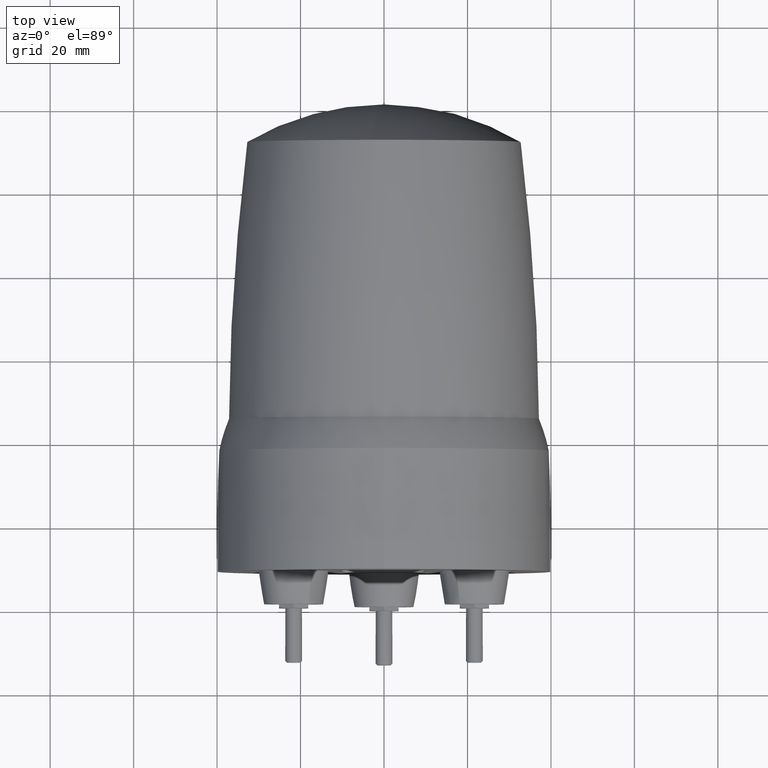
[diagram: clean part render]
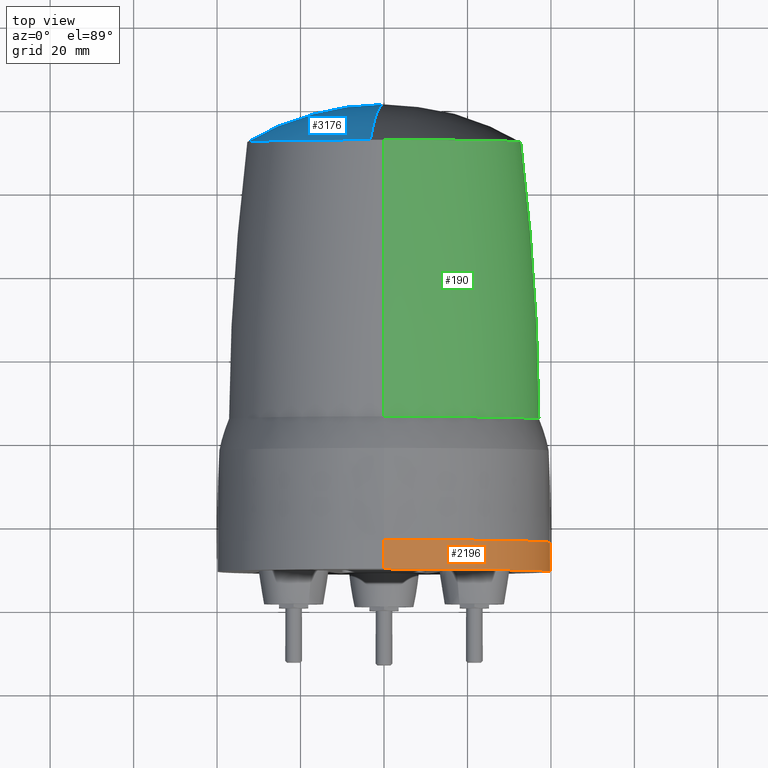
[diagram: same view with three faces highlighted in distinct colors, each labeled with its STEP entity id]
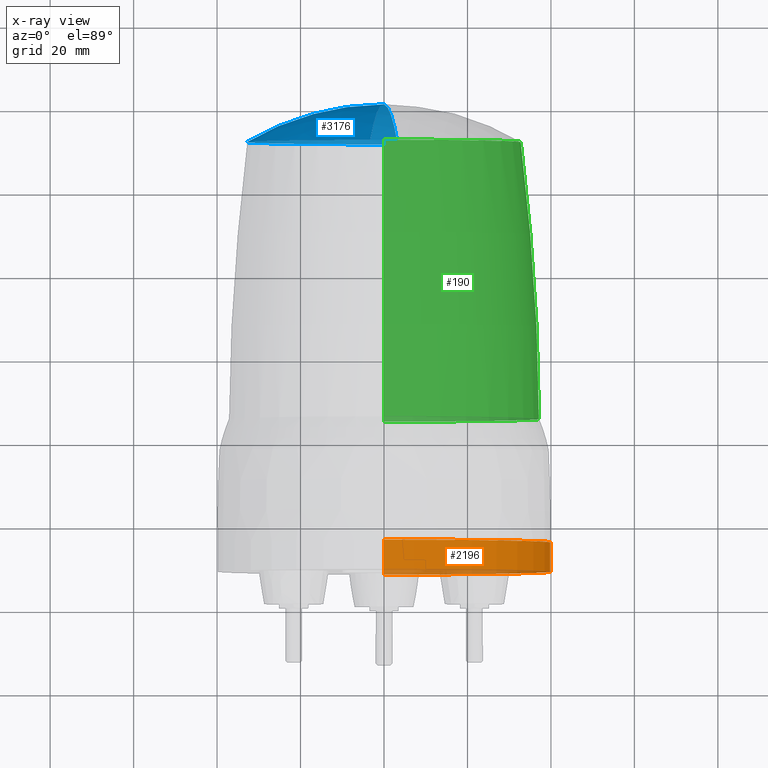
[diagram: x-ray of the same camera — body ghosted, the three highlighted faces saturated]
A machine part, top view with three faces highlighted in distinct colors.
The next image is the same camera in x-ray (body ghosted, the three faces saturated) — at least one of them is partly hidden behind the body in this view.
Their STEP definitions:

[orange] entity #2196 — the highlighted cylindrical surface (partial cylindrical patch) has radius 40 mm, axis along (0, -1, 0).
#171 = VECTOR ( 'NONE', #2950, 1000.000000000000000 ) ;
#316 = CIRCLE ( 'NONE', #4392, 40.00000000000000000 ) ;
#612 = DIRECTION ( 'NONE',  ( 0.000000000000000000, 0.000000000000000000, -1.000000000000000000 ) ) ;
#911 = CARTESIAN_POINT ( 'NONE',  ( 0.000000000000000000, 16.00000000000000000, -40.00000000000000000 ) ) ;
#1172 = EDGE_CURVE ( 'NONE', #2949, #2592, #2368, .T. ) ;
#1287 = VERTEX_POINT ( 'NONE', #2703 ) ;
#1389 = ORIENTED_EDGE ( 'NONE', *, *, #1997, .F. ) ;
#1455 = CARTESIAN_POINT ( 'NONE',  ( 4.814824860968091034E-30, 16.00000000000000000, -40.00000000000000000 ) ) ;
#1819 = VECTOR ( 'NONE', #3354, 1000.000000000000000 ) ;
#1967 = CARTESIAN_POINT ( 'NONE',  ( 4.898587196589413026E-15, 16.00000000000000000, 40.00000000000000000 ) ) ;
#1997 = EDGE_CURVE ( 'NONE', #2592, #3577, #316, .T. ) ;
#2073 = DIRECTION ( 'NONE',  ( -3.469446951953615175E-16, -1.000000000000000000, 0.000000000000000000 ) ) ;
#2149 = FACE_OUTER_BOUND ( 'NONE', #2294, .T. ) ;
#2169 = CARTESIAN_POINT ( 'NONE',  ( 0.000000000000000000, 16.00000000000000000, 0.000000000000000000 ) ) ;
#2196 = ADVANCED_FACE ( 'NONE', ( #2149 ), #4285, .T. ) ;
#2294 = EDGE_LOOP ( 'NONE', ( #2842, #3083, #1389, #3178 ) ) ;
#2300 = CARTESIAN_POINT ( 'NONE',  ( 4.898587196589413026E-15, 9.000000000000000000, 40.00000000000000000 ) ) ;
#2332 = CIRCLE ( 'NONE', #3887, 40.00000000000000000 ) ;
#2353 = CARTESIAN_POINT ( 'NONE',  ( 0.000000000000000000, 16.00000000000000000, 0.000000000000000000 ) ) ;
#2368 = LINE ( 'NONE', #911, #171 ) ;
#2592 = VERTEX_POINT ( 'NONE', #3630 ) ;
#2612 = LINE ( 'NONE', #1967, #1819 ) ;
#2703 = CARTESIAN_POINT ( 'NONE',  ( 4.898587196589417759E-15, 16.00000000000000000, 40.00000000000000000 ) ) ;
#2727 = EDGE_CURVE ( 'NONE', #2949, #1287, #2332, .T. ) ;
#2799 = DIRECTION ( 'NONE',  ( 0.000000000000000000, -1.000000000000000000, 0.000000000000000000 ) ) ;
#2842 = ORIENTED_EDGE ( 'NONE', *, *, #2727, .T. ) ;
#2901 = DIRECTION ( 'NONE',  ( 0.000000000000000000, 0.000000000000000000, -1.000000000000000000 ) ) ;
#2949 = VERTEX_POINT ( 'NONE', #1455 ) ;
#2950 = DIRECTION ( 'NONE',  ( 0.000000000000000000, -1.000000000000000000, 0.000000000000000000 ) ) ;
#3083 = ORIENTED_EDGE ( 'NONE', *, *, #3508, .T. ) ;
#3178 = ORIENTED_EDGE ( 'NONE', *, *, #1172, .F. ) ;
#3291 = AXIS2_PLACEMENT_3D ( 'NONE', #2169, #3592, #2901 ) ;
#3311 = CARTESIAN_POINT ( 'NONE',  ( 0.000000000000000000, 9.000000000000000000, 0.000000000000000000 ) ) ;
#3354 = DIRECTION ( 'NONE',  ( 0.000000000000000000, -1.000000000000000000, 0.000000000000000000 ) ) ;
#3491 = DIRECTION ( 'NONE',  ( 1.000000000000000000, -3.469446951953614189E-16, 0.000000000000000000 ) ) ;
#3508 = EDGE_CURVE ( 'NONE', #1287, #3577, #2612, .T. ) ;
#3577 = VERTEX_POINT ( 'NONE', #2300 ) ;
#3592 = DIRECTION ( 'NONE',  ( 0.000000000000000000, -1.000000000000000000, 0.000000000000000000 ) ) ;
#3630 = CARTESIAN_POINT ( 'NONE',  ( 0.000000000000000000, 9.000000000000000000, -40.00000000000000000 ) ) ;
#3887 = AXIS2_PLACEMENT_3D ( 'NONE', #2353, #2073, #3491 ) ;
#4285 = CYLINDRICAL_SURFACE ( 'NONE', #3291, 40.00000000000000000 ) ;
#4392 = AXIS2_PLACEMENT_3D ( 'NONE', #3311, #2799, #612 ) ;

[blue] entity #3176 — the highlighted spherical surface has radius 64 mm.
#42 = AXIS2_PLACEMENT_3D ( 'NONE', #614, #2441, #958 ) ;
#51 = CARTESIAN_POINT ( 'NONE',  ( 3.911683560049779334E-17, 111.9574960022395942, -32.79746382458340292 ) ) ;
#229 = VERTEX_POINT ( 'NONE', #819 ) ;
#289 = CARTESIAN_POINT ( 'NONE',  ( -4.111966618341213830E-09, 56.99999999659785743, -2.616512756758935325E-10 ) ) ;
#331 = VERTEX_POINT ( 'NONE', #3464 ) ;
#426 = EDGE_CURVE ( 'NONE', #3232, #331, #3172, .T. ) ;
#611 = DIRECTION ( 'NONE',  ( 0.9950041652811341120, -4.231360047240093586E-16, 0.09983341661584822779 ) ) ;
#614 = CARTESIAN_POINT ( 'NONE',  ( -4.111966618341213830E-09, 56.99999999659785743, -2.616512756758935325E-10 ) ) ;
#628 = AXIS2_PLACEMENT_3D ( 'NONE', #289, #3780, #4521 ) ;
#819 = CARTESIAN_POINT ( 'NONE',  ( -4.111939281693475977E-09, 121.0000000005986038, -2.616524714083897256E-10 ) ) ;
#950 = CIRCLE ( 'NONE', #4434, 64.00000000400073930 ) ;
#958 = DIRECTION ( 'NONE',  ( -0.09983341661584835269, 0.000000000000000000, 0.9950041652811342230 ) ) ;
#961 = ORIENTED_EDGE ( 'NONE', *, *, #1370, .T. ) ;
#1094 = CIRCLE ( 'NONE', #42, 64.00000000400073930 ) ;
#1290 = AXIS2_PLACEMENT_3D ( 'NONE', #3759, #4098, #2025 ) ;
#1370 = EDGE_CURVE ( 'NONE', #2679, #229, #1094, .T. ) ;
#2025 = DIRECTION ( 'NONE',  ( 0.09983341664186271003, 0.000000000000000000, -0.9950041652785239776 ) ) ;
#2058 = AXIS2_PLACEMENT_3D ( 'NONE', #3396, #4103, #2359 ) ;
#2359 = DIRECTION ( 'NONE',  ( 0.09983341664186271003, 0.000000000000000000, -0.9950041652785239776 ) ) ;
#2441 = DIRECTION ( 'NONE',  ( -0.9950041652811341120, 4.231360047240093586E-16, -0.09983341661584835269 ) ) ;
#2492 = CIRCLE ( 'NONE', #1290, 32.79746382458339582 ) ;
#2613 = ORIENTED_EDGE ( 'NONE', *, *, #426, .F. ) ;
#2679 = VERTEX_POINT ( 'NONE', #3783 ) ;
#2705 = EDGE_CURVE ( 'NONE', #2679, #3232, #2492, .T. ) ;
#3124 = ORIENTED_EDGE ( 'NONE', *, *, #2705, .F. ) ;
#3172 = CIRCLE ( 'NONE', #2058, 32.79746382458339582 ) ;
#3176 = ADVANCED_FACE ( 'NONE', ( #4568 ), #4200, .T. ) ;
#3232 = VERTEX_POINT ( 'NONE', #51 ) ;
#3254 = EDGE_LOOP ( 'NONE', ( #3124, #961, #4586, #2613 ) ) ;
#3396 = CARTESIAN_POINT ( 'NONE',  ( -5.000000000000000105E-09, 111.9574960022395942, 0.000000000000000000 ) ) ;
#3464 = CARTESIAN_POINT ( 'NONE',  ( 3.274282865796063202, 111.9574960022395942, -32.63361311603222248 ) ) ;
#3759 = CARTESIAN_POINT ( 'NONE',  ( -5.000000000000000105E-09, 111.9574960022395942, 0.000000000000000000 ) ) ;
#3780 = DIRECTION ( 'NONE',  ( -0.9950041652811341120, 4.231360047240093586E-16, -0.09983341661584822779 ) ) ;
#3783 = CARTESIAN_POINT ( 'NONE',  ( -3.274282874054796455, 111.9574960022395942, 32.63361311585617841 ) ) ;
#4057 = CARTESIAN_POINT ( 'NONE',  ( -4.111966618341213830E-09, 56.99999999659785743, -2.616512756758935325E-10 ) ) ;
#4098 = DIRECTION ( 'NONE',  ( 0.000000000000000000, -1.000000000000000000, 0.000000000000000000 ) ) ;
#4103 = DIRECTION ( 'NONE',  ( 0.000000000000000000, -1.000000000000000000, 0.000000000000000000 ) ) ;
#4112 = DIRECTION ( 'NONE',  ( 0.09983341661584822779, 0.000000000000000000, -0.9950041652811342230 ) ) ;
#4200 = SPHERICAL_SURFACE ( 'NONE', #628, 64.00000000400073930 ) ;
#4434 = AXIS2_PLACEMENT_3D ( 'NONE', #4057, #611, #4112 ) ;
#4511 = EDGE_CURVE ( 'NONE', #331, #229, #950, .T. ) ;
#4521 = DIRECTION ( 'NONE',  ( 0.09983341661584822779, 0.000000000000000000, -0.9950041652811341120 ) ) ;
#4568 = FACE_OUTER_BOUND ( 'NONE', #3254, .T. ) ;
#4586 = ORIENTED_EDGE ( 'NONE', *, *, #4511, .F. ) ;

[green] entity #190 — the highlighted toroidal blend (fillet) surface has major radius 612.632 mm and minor (blend) radius 650 mm.
#30 = AXIS2_PLACEMENT_3D ( 'NONE', #3694, #1236, #838 ) ;
#39 = CARTESIAN_POINT ( 'NONE',  ( 0.000000000000000000, 35.01237398751774776, 0.000000000000000000 ) ) ;
#51 = CARTESIAN_POINT ( 'NONE',  ( 3.911683560049779334E-17, 111.9574960022395942, -32.79746382458340292 ) ) ;
#95 = AXIS2_PLACEMENT_3D ( 'NONE', #3399, #2673, #951 ) ;
#131 = DIRECTION ( 'NONE',  ( -1.000000000000000000, 0.000000000000000000, -1.224646799147353207E-16 ) ) ;
#190 = ADVANCED_FACE ( 'NONE', ( #3587 ), #1223, .T. ) ;
#331 = VERTEX_POINT ( 'NONE', #3464 ) ;
#426 = EDGE_CURVE ( 'NONE', #3232, #331, #3172, .T. ) ;
#489 = CARTESIAN_POINT ( 'NONE',  ( -5.000000000000000105E-09, 111.9574960022395942, 0.000000000000000000 ) ) ;
#550 = CIRCLE ( 'NONE', #1085, 32.79746382458339582 ) ;
#621 = AXIS2_PLACEMENT_3D ( 'NONE', #2700, #131, #4373 ) ;
#688 = VERTEX_POINT ( 'NONE', #3676 ) ;
#800 = ORIENTED_EDGE ( 'NONE', *, *, #1906, .F. ) ;
#838 = DIRECTION ( 'NONE',  ( 0.000000000000000000, 0.000000000000000000, -1.000000000000000000 ) ) ;
#849 = AXIS2_PLACEMENT_3D ( 'NONE', #39, #2872, #2531 ) ;
#951 = DIRECTION ( 'NONE',  ( 0.000000000000000000, 0.000000000000000000, 1.000000000000000000 ) ) ;
#1036 = EDGE_LOOP ( 'NONE', ( #800, #4188, #3580, #2751, #3480 ) ) ;
#1085 = AXIS2_PLACEMENT_3D ( 'NONE', #489, #1894, #4378 ) ;
#1165 = EDGE_CURVE ( 'NONE', #1983, #3232, #2050, .T. ) ;
#1223 = TOROIDAL_SURFACE ( 'NONE', #849, -612.6321985493580087, 650.0000001554939217 ) ;
#1236 = DIRECTION ( 'NONE',  ( 1.000000000000000000, -0.000000000000000000, 0.000000000000000000 ) ) ;
#1873 = CARTESIAN_POINT ( 'NONE',  ( -4.251983009644433934E-15, 111.9574960022395942, 32.79746382458340292 ) ) ;
#1894 = DIRECTION ( 'NONE',  ( 0.000000000000000000, -1.000000000000000000, 0.000000000000000000 ) ) ;
#1906 = EDGE_CURVE ( 'NONE', #688, #3934, #2978, .T. ) ;
#1983 = VERTEX_POINT ( 'NONE', #2310 ) ;
#2050 = CIRCLE ( 'NONE', #30, 650.0000001554939217 ) ;
#2058 = AXIS2_PLACEMENT_3D ( 'NONE', #3396, #4103, #2359 ) ;
#2310 = CARTESIAN_POINT ( 'NONE',  ( 0.000000000000000000, 45.60319136799999740, -37.28151479199999585 ) ) ;
#2359 = DIRECTION ( 'NONE',  ( 0.09983341664186271003, 0.000000000000000000, -0.9950041652785239776 ) ) ;
#2531 = DIRECTION ( 'NONE',  ( 0.000000000000000000, 0.000000000000000000, -1.000000000000000000 ) ) ;
#2673 = DIRECTION ( 'NONE',  ( 0.000000000000000000, 1.000000000000000000, 0.000000000000000000 ) ) ;
#2700 = CARTESIAN_POINT ( 'NONE',  ( 7.502580610080770930E-14, 35.01237398751774776, -612.6321985493580087 ) ) ;
#2751 = ORIENTED_EDGE ( 'NONE', *, *, #426, .T. ) ;
#2872 = DIRECTION ( 'NONE',  ( 0.000000000000000000, 1.000000000000000000, 0.000000000000000000 ) ) ;
#2978 = CIRCLE ( 'NONE', #621, 650.0000001554939217 ) ;
#3172 = CIRCLE ( 'NONE', #2058, 32.79746382458339582 ) ;
#3232 = VERTEX_POINT ( 'NONE', #51 ) ;
#3307 = EDGE_CURVE ( 'NONE', #688, #1983, #4104, .T. ) ;
#3396 = CARTESIAN_POINT ( 'NONE',  ( -5.000000000000000105E-09, 111.9574960022395942, 0.000000000000000000 ) ) ;
#3399 = CARTESIAN_POINT ( 'NONE',  ( 0.000000000000000000, 45.60319136799999740, 0.000000000000000000 ) ) ;
#3464 = CARTESIAN_POINT ( 'NONE',  ( 3.274282865796063202, 111.9574960022395942, -32.63361311603222248 ) ) ;
#3480 = ORIENTED_EDGE ( 'NONE', *, *, #3813, .T. ) ;
#3580 = ORIENTED_EDGE ( 'NONE', *, *, #1165, .T. ) ;
#3587 = FACE_OUTER_BOUND ( 'NONE', #1036, .T. ) ;
#3676 = CARTESIAN_POINT ( 'NONE',  ( -4.708614067822110311E-15, 45.60319136799999740, 37.28151479199999585 ) ) ;
#3694 = CARTESIAN_POINT ( 'NONE',  ( 0.000000000000000000, 35.01237398751774776, 612.6321985493580087 ) ) ;
#3813 = EDGE_CURVE ( 'NONE', #331, #3934, #550, .T. ) ;
#3934 = VERTEX_POINT ( 'NONE', #1873 ) ;
#4103 = DIRECTION ( 'NONE',  ( 0.000000000000000000, -1.000000000000000000, 0.000000000000000000 ) ) ;
#4104 = CIRCLE ( 'NONE', #95, 37.28151479199999585 ) ;
#4188 = ORIENTED_EDGE ( 'NONE', *, *, #3307, .T. ) ;
#4373 = DIRECTION ( 'NONE',  ( -1.224646799147353454E-16, 0.000000000000000000, 1.000000000000000000 ) ) ;
#4378 = DIRECTION ( 'NONE',  ( 0.09983341664186271003, 0.000000000000000000, -0.9950041652785239776 ) ) ;